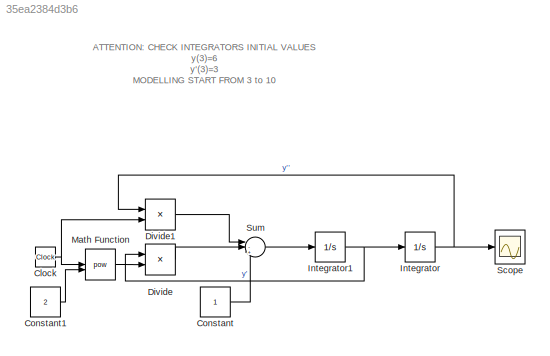
MODEL slx_35ea2384d3b6
KIND model
CONFIG AbsTol = auto
CONFIG EnableMultiTasking = off
CONFIG FixedStep = auto
CONFIG MaxStep = auto
CONFIG MinStep = auto
CONFIG RelTol = 1e-3
CONFIG SampleTimeConstraint = Unconstrained
CONFIG SolverName = ode45
CONFIG StartTime = 3
CONFIG StopTime = 10
BLOCK [Clock] Clock
BLOCK [Constant] Constant
BLOCK [Constant] Constant1
  Value = 2
BLOCK [Product] Divide
  Inputs = */
BLOCK [Product] Divide1
  Inputs = */
BLOCK [Integrator] Integrator
  InitialCondition = 3
BLOCK [Integrator] Integrator1
  InitialCondition = 6
BLOCK [Math] Math Function
  Operator = pow
BLOCK [Scope] Scope
  Floating = off
  NumInputPorts = 1
  ScopeSpecificationString = Simulink.scopes.TimeScopeBlockCfg('CurrentConfiguration', extmgr.ConfigurationSet(extmgr.Configuration('Core','General UI',true),extmgr.Configuration('Core','Source UI',true),extmgr.Configuration('Sources','WiredSimulink',true),extmgr.Configuration('Visuals','Time Domain',true,'SerializedDisplays',{struct('MinYLimReal','0.91051','MaxYLimReal','21.80538','YLabelReal','','MinYLimMag','0.91051','MaxY...<+1406ch>
BLOCK [Sum] Sum
  Inputs = |-++
ANNOTATION (root): ATTENTION: CHECK INTEGRATORS INITIAL VALUES y(3)=6 y'(3)=3 MODELLING START FROM 3 to 10
NET Clock:1 -> Divide1:2, Math Function:1
LINE Constant1:1 -> Math Function:2
LINE Constant:1 -> Sum:3
LINE Divide1:1 -> Sum:1
LINE Divide:1 -> Sum:2
NET Integrator1:1 -> Divide:1, Integrator:1
NET Integrator:1 -> Divide1:1, Scope:1
LINE Math Function:1 -> Divide:2
LINE Sum:1 -> Integrator1:1
note: NET lines group one-source signal fan-out (src -> all destinations, sorted); 1:1 wires keep LINE
